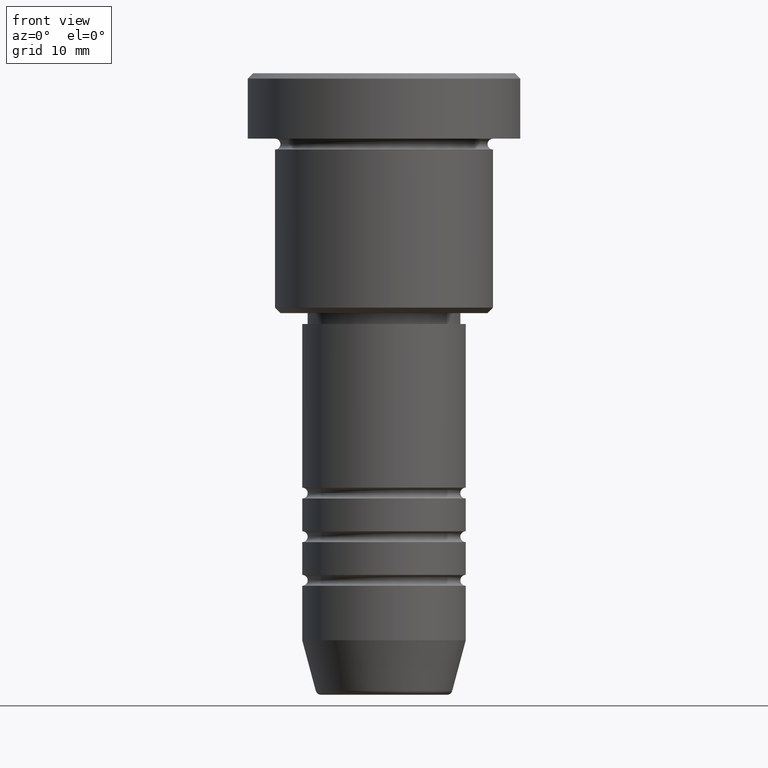
[diagram: clean part render]
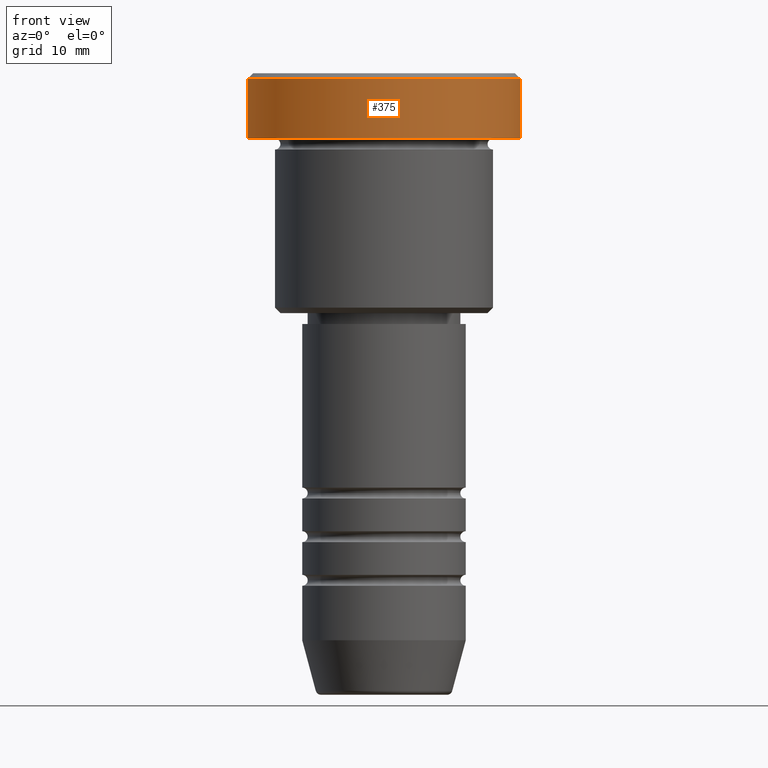
[diagram: same view with one face highlighted and labeled with its STEP entity id]
A machine part, front view. The second image highlights one B-rep face of the part: STEP entity #375.
In plain terms, the highlighted cylindrical surface (partial cylindrical patch) has radius 12.5 mm, axis along (-0, -0, 1).
Its self-contained STEP definition (entity closure, byte-faithful):
#40 = VERTEX_POINT ( 'NONE', #74 ) ;
#71 = CARTESIAN_POINT ( 'NONE',  ( 0.000000000000000000, 0.000000000000000000, -5.999999999999996447 ) ) ;
#74 = CARTESIAN_POINT ( 'NONE',  ( -12.50000000000000000, 1.530808498934191521E-15, -0.4999999999999917843 ) ) ;
#91 = VERTEX_POINT ( 'NONE', #108 ) ;
#95 = EDGE_CURVE ( 'NONE', #777, #40, #632, .T. ) ;
#101 = AXIS2_PLACEMENT_3D ( 'NONE', #391, #121, #265 ) ;
#108 = CARTESIAN_POINT ( 'NONE',  ( 12.50000000000000000, 0.000000000000000000, -5.999999999999996447 ) ) ;
#121 = DIRECTION ( 'NONE',  ( 0.000000000000000000, 0.000000000000000000, -1.000000000000000000 ) ) ;
#237 = CIRCLE ( 'NONE', #448, 12.50000000000000000 ) ;
#255 = AXIS2_PLACEMENT_3D ( 'NONE', #995, #1174, #1071 ) ;
#265 = DIRECTION ( 'NONE',  ( 1.000000000000000000, 0.000000000000000000, 0.000000000000000000 ) ) ;
#273 = CARTESIAN_POINT ( 'NONE',  ( -12.50000000000000000, 1.530808498934191521E-15, 0.000000000000000000 ) ) ;
#316 = ORIENTED_EDGE ( 'NONE', *, *, #365, .T. ) ;
#339 = FACE_OUTER_BOUND ( 'NONE', #1120, .T. ) ;
#360 = DIRECTION ( 'NONE',  ( -0.000000000000000000, -0.000000000000000000, 1.000000000000000000 ) ) ;
#365 = EDGE_CURVE ( 'NONE', #777, #91, #237, .T. ) ;
#366 = CARTESIAN_POINT ( 'NONE',  ( -12.50000000000000000, 1.530808498934191521E-15, -5.999999999999996447 ) ) ;
#375 = ADVANCED_FACE ( 'NONE', ( #339 ), #1148, .T. ) ;
#391 = CARTESIAN_POINT ( 'NONE',  ( 0.000000000000000000, 0.000000000000000000, -0.4999999999999917843 ) ) ;
#398 = ORIENTED_EDGE ( 'NONE', *, *, #799, .T. ) ;
#448 = AXIS2_PLACEMENT_3D ( 'NONE', #71, #1067, #810 ) ;
#456 = VERTEX_POINT ( 'NONE', #1117 ) ;
#474 = VECTOR ( 'NONE', #1087, 1000.000000000000000 ) ;
#550 = EDGE_CURVE ( 'NONE', #456, #40, #1037, .T. ) ;
#632 = LINE ( 'NONE', #273, #735 ) ;
#676 = ORIENTED_EDGE ( 'NONE', *, *, #550, .T. ) ;
#735 = VECTOR ( 'NONE', #360, 1000.000000000000000 ) ;
#777 = VERTEX_POINT ( 'NONE', #366 ) ;
#799 = EDGE_CURVE ( 'NONE', #91, #456, #1183, .T. ) ;
#808 = CARTESIAN_POINT ( 'NONE',  ( 12.50000000000000000, 0.000000000000000000, 0.000000000000000000 ) ) ;
#810 = DIRECTION ( 'NONE',  ( 1.000000000000000000, 0.000000000000000000, 0.000000000000000000 ) ) ;
#970 = ORIENTED_EDGE ( 'NONE', *, *, #95, .F. ) ;
#995 = CARTESIAN_POINT ( 'NONE',  ( 0.000000000000000000, 0.000000000000000000, 0.000000000000000000 ) ) ;
#1037 = CIRCLE ( 'NONE', #101, 12.50000000000000000 ) ;
#1067 = DIRECTION ( 'NONE',  ( -0.000000000000000000, -0.000000000000000000, 1.000000000000000000 ) ) ;
#1071 = DIRECTION ( 'NONE',  ( 1.000000000000000000, 0.000000000000000000, 0.000000000000000000 ) ) ;
#1087 = DIRECTION ( 'NONE',  ( -0.000000000000000000, -0.000000000000000000, 1.000000000000000000 ) ) ;
#1117 = CARTESIAN_POINT ( 'NONE',  ( 12.50000000000000000, 0.000000000000000000, -0.4999999999999917843 ) ) ;
#1120 = EDGE_LOOP ( 'NONE', ( #970, #316, #398, #676 ) ) ;
#1148 = CYLINDRICAL_SURFACE ( 'NONE', #255, 12.50000000000000000 ) ;
#1174 = DIRECTION ( 'NONE',  ( -0.000000000000000000, -0.000000000000000000, 1.000000000000000000 ) ) ;
#1183 = LINE ( 'NONE', #808, #474 ) ;